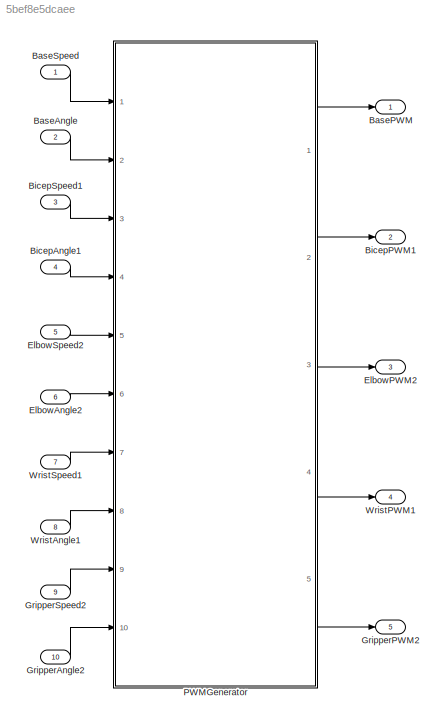
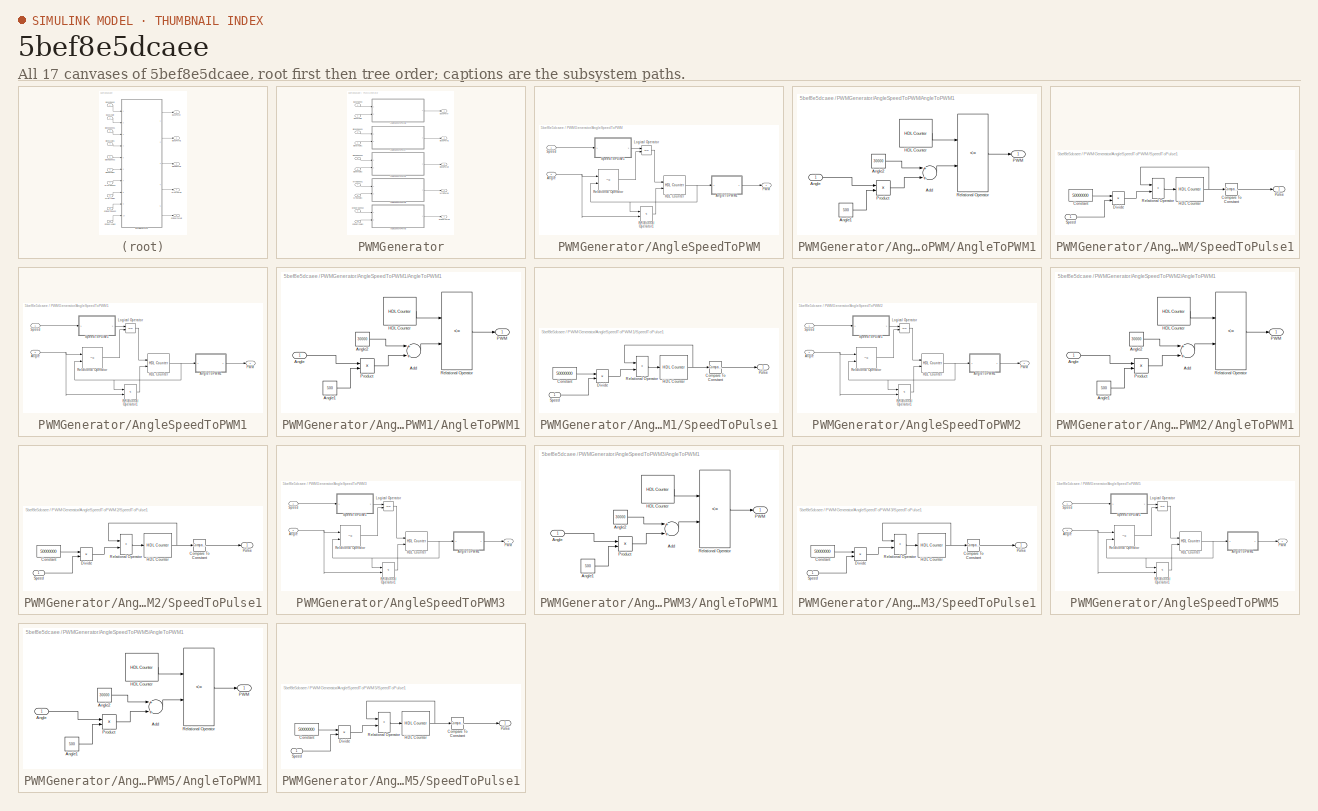
[diagram: thumbnail index - all 17 canvases of the model, root first then tree order]
MODEL slx_5bef8e5dcaee
KIND model
CONFIG AbsTol = auto
CONFIG EnableMultiTasking = off
CONFIG FixedStep = 1
CONFIG MaxStep = auto
CONFIG MinStep = auto
CONFIG RelTol = 1e-3
CONFIG SampleTimeConstraint = Unconstrained
CONFIG Solver = FixedStepDiscrete
CONFIG SolverName = FixedStepDiscrete
CONFIG StartTime = 0.0
CONFIG StopTime = 50000
BLOCK [Inport] BaseAngle
  IconDisplay = Port number
  OutDataTypeStr = uint8
  Port = 2
BLOCK [Outport] BasePWM
  IconDisplay = Port number
BLOCK [Inport] BaseSpeed
  IconDisplay = Port number
  OutDataTypeStr = uint8
BLOCK [Inport] BicepAngle1
  IconDisplay = Port number
  OutDataTypeStr = uint8
  Port = 4
BLOCK [Outport] BicepPWM1
  IconDisplay = Port number
  Port = 2
BLOCK [Inport] BicepSpeed1
  IconDisplay = Port number
  OutDataTypeStr = uint8
  Port = 3
BLOCK [Inport] ElbowAngle2
  IconDisplay = Port number
  OutDataTypeStr = uint8
  Port = 6
BLOCK [Outport] ElbowPWM2
  IconDisplay = Port number
  Port = 3
BLOCK [Inport] ElbowSpeed2
  IconDisplay = Port number
  OutDataTypeStr = uint8
  Port = 5
BLOCK [Inport] GripperAngle2
  IconDisplay = Port number
  OutDataTypeStr = uint8
  Port = 10
BLOCK [Outport] GripperPWM2
  IconDisplay = Port number
  Port = 5
BLOCK [Inport] GripperSpeed2
  IconDisplay = Port number
  OutDataTypeStr = uint8
  Port = 9
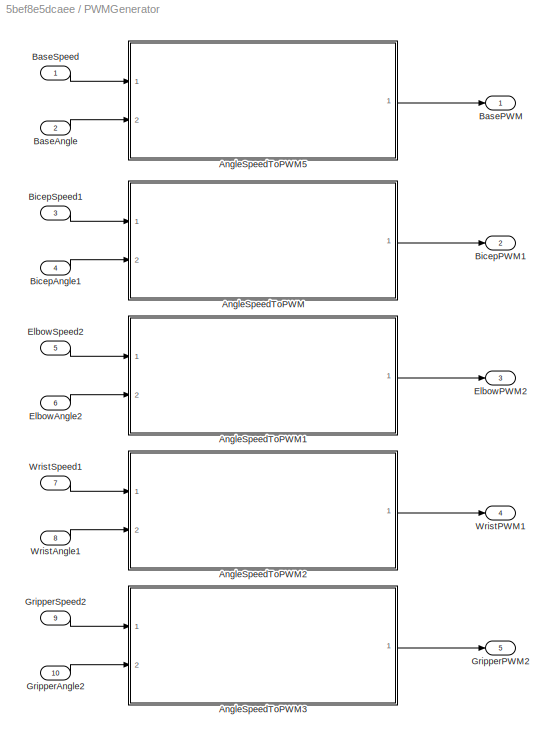
BLOCK [SubSystem] PWMGenerator
  Ports = [10, 5]
  RequestExecContextInheritance = off
  Variant = off
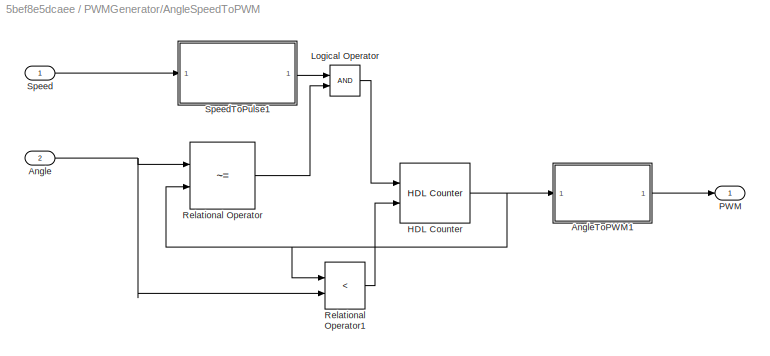
BLOCK [SubSystem] PWMGenerator/AngleSpeedToPWM
  Ports = [2, 1]
  RequestExecContextInheritance = off
  Variant = off
BLOCK [Inport] PWMGenerator/AngleSpeedToPWM/Angle
  IconDisplay = Port number
  Port = 2
BLOCK [SubSystem] PWMGenerator/AngleSpeedToPWM/AngleToPWM1
  Ports = [1, 1]
  RequestExecContextInheritance = off
  Variant = off
BLOCK [Sum] PWMGenerator/AngleSpeedToPWM/AngleToPWM1/Add
  InputSameDT = off
  OutDataTypeStr = Inherit: Inherit via internal rule
  Ports = [2, 1]
  SaturateOnIntegerOverflow = off
BLOCK [Inport] PWMGenerator/AngleSpeedToPWM/AngleToPWM1/Angle
  IconDisplay = Port number
BLOCK [Constant] PWMGenerator/AngleSpeedToPWM/AngleToPWM1/Angle1
  OutDataTypeStr = uint16
  SampleTime = 1
  Value = 500
BLOCK [Constant] PWMGenerator/AngleSpeedToPWM/AngleToPWM1/Angle2
  OutDataTypeStr = uint32
  SampleTime = 1
  Value = 30000
BLOCK [Reference] PWMGenerator/AngleSpeedToPWM/AngleToPWM1/HDL Counter  REF=hdlsllib/HDL Operations/HDL Counter
  Ports = [0, 1]
  SourceBlock = hdlsllib/HDL Operations/HDL Counter
  SourceProductBaseCode = HD
  SourceProductName = HDL Coder
  SourceType = HDL Counter
BLOCK [Outport] PWMGenerator/AngleSpeedToPWM/AngleToPWM1/PWM
  IconDisplay = Port number
BLOCK [Product] PWMGenerator/AngleSpeedToPWM/AngleToPWM1/Product
  InputSameDT = off
  OutDataTypeStr = Inherit: Inherit via internal rule
  Ports = [2, 1]
  RndMeth = Floor
  SaturateOnIntegerOverflow = off
BLOCK [RelationalOperator] PWMGenerator/AngleSpeedToPWM/AngleToPWM1/Relational Operator
  InputSameDT = off
  Operator = <=
  OutDataTypeStr = boolean
  Ports = [2, 1]
  RndMeth = Simplest
BLOCK [Reference] PWMGenerator/AngleSpeedToPWM/HDL Counter  REF=hdlsllib/HDL Operations/HDL Counter
  Ports = [2, 1]
  SourceBlock = hdlsllib/HDL Operations/HDL Counter
  SourceProductBaseCode = HD
  SourceProductName = HDL Coder
  SourceType = HDL Counter
BLOCK [Logic] PWMGenerator/AngleSpeedToPWM/Logical Operator
  AllPortsSameDT = off
  OutDataTypeStr = boolean
  Ports = [2, 1]
BLOCK [Outport] PWMGenerator/AngleSpeedToPWM/PWM
  IconDisplay = Port number
BLOCK [RelationalOperator] PWMGenerator/AngleSpeedToPWM/Relational Operator
  InputSameDT = off
  Operator = ~=
  OutDataTypeStr = boolean
  Ports = [2, 1]
  RndMeth = Simplest
BLOCK [RelationalOperator] PWMGenerator/AngleSpeedToPWM/Relational Operator1
  InputSameDT = off
  Operator = <
  OutDataTypeStr = boolean
  Ports = [2, 1]
  RndMeth = Simplest
BLOCK [Inport] PWMGenerator/AngleSpeedToPWM/Speed
  IconDisplay = Port number
BLOCK [SubSystem] PWMGenerator/AngleSpeedToPWM/SpeedToPulse1
  Ports = [1, 1]
  RequestExecContextInheritance = off
  Variant = off
BLOCK [Reference] PWMGenerator/AngleSpeedToPWM/SpeedToPulse1/Compare To Constant  REF=simulink/Logic and Bit
Operations/Compare
To Constant
  Ports = [1, 1]
  SourceBlock = simulink/Logic and Bit\nOperations/Compare\nTo Constant
  SourceProductBaseCode = SL
  SourceProductName = Simulink
  SourceType = Compare To Constant
BLOCK [Constant] PWMGenerator/AngleSpeedToPWM/SpeedToPulse1/Constant
  OutDataTypeStr = uint32
  SampleTime = 1
  Value = 50000000
BLOCK [Product] PWMGenerator/AngleSpeedToPWM/SpeedToPulse1/Divide
  InputSameDT = off
  Inputs = */
  OutDataTypeStr = Inherit: Inherit via internal rule
  Ports = [2, 1]
BLOCK [Reference] PWMGenerator/AngleSpeedToPWM/SpeedToPulse1/HDL Counter  REF=hdlsllib/HDL Operations/HDL Counter
  Ports = [1, 1]
  SourceBlock = hdlsllib/HDL Operations/HDL Counter
  SourceProductBaseCode = HD
  SourceProductName = HDL Coder
  SourceType = HDL Counter
BLOCK [Outport] PWMGenerator/AngleSpeedToPWM/SpeedToPulse1/Pulse
  IconDisplay = Port number
BLOCK [RelationalOperator] PWMGenerator/AngleSpeedToPWM/SpeedToPulse1/Relational Operator
  InputSameDT = off
  Operator = >
  OutDataTypeStr = boolean
  Ports = [2, 1]
BLOCK [Inport] PWMGenerator/AngleSpeedToPWM/SpeedToPulse1/Speed
  IconDisplay = Port number
  OutDataTypeStr = uint8
BLOCK [SubSystem] PWMGenerator/AngleSpeedToPWM1
  Ports = [2, 1]
  RequestExecContextInheritance = off
  Variant = off
BLOCK [Inport] PWMGenerator/AngleSpeedToPWM1/Angle
  IconDisplay = Port number
  Port = 2
BLOCK [SubSystem] PWMGenerator/AngleSpeedToPWM1/AngleToPWM1
  Ports = [1, 1]
  RequestExecContextInheritance = off
  Variant = off
BLOCK [Sum] PWMGenerator/AngleSpeedToPWM1/AngleToPWM1/Add
  InputSameDT = off
  OutDataTypeStr = Inherit: Inherit via internal rule
  Ports = [2, 1]
  SaturateOnIntegerOverflow = off
BLOCK [Inport] PWMGenerator/AngleSpeedToPWM1/AngleToPWM1/Angle
  IconDisplay = Port number
BLOCK [Constant] PWMGenerator/AngleSpeedToPWM1/AngleToPWM1/Angle1
  OutDataTypeStr = uint16
  SampleTime = 1
  Value = 500
BLOCK [Constant] PWMGenerator/AngleSpeedToPWM1/AngleToPWM1/Angle2
  OutDataTypeStr = uint32
  SampleTime = 1
  Value = 30000
BLOCK [Reference] PWMGenerator/AngleSpeedToPWM1/AngleToPWM1/HDL Counter  REF=hdlsllib/HDL Operations/HDL Counter
  Ports = [0, 1]
  SourceBlock = hdlsllib/HDL Operations/HDL Counter
  SourceProductBaseCode = HD
  SourceProductName = HDL Coder
  SourceType = HDL Counter
BLOCK [Outport] PWMGenerator/AngleSpeedToPWM1/AngleToPWM1/PWM
  IconDisplay = Port number
BLOCK [Product] PWMGenerator/AngleSpeedToPWM1/AngleToPWM1/Product
  InputSameDT = off
  OutDataTypeStr = Inherit: Inherit via internal rule
  Ports = [2, 1]
  RndMeth = Floor
  SaturateOnIntegerOverflow = off
BLOCK [RelationalOperator] PWMGenerator/AngleSpeedToPWM1/AngleToPWM1/Relational Operator
  InputSameDT = off
  Operator = <=
  OutDataTypeStr = boolean
  Ports = [2, 1]
  RndMeth = Simplest
BLOCK [Reference] PWMGenerator/AngleSpeedToPWM1/HDL Counter  REF=hdlsllib/HDL Operations/HDL Counter
  Ports = [2, 1]
  SourceBlock = hdlsllib/HDL Operations/HDL Counter
  SourceProductBaseCode = HD
  SourceProductName = HDL Coder
  SourceType = HDL Counter
BLOCK [Logic] PWMGenerator/AngleSpeedToPWM1/Logical Operator
  AllPortsSameDT = off
  OutDataTypeStr = boolean
  Ports = [2, 1]
BLOCK [Outport] PWMGenerator/AngleSpeedToPWM1/PWM
  IconDisplay = Port number
BLOCK [RelationalOperator] PWMGenerator/AngleSpeedToPWM1/Relational Operator
  InputSameDT = off
  Operator = ~=
  OutDataTypeStr = boolean
  Ports = [2, 1]
  RndMeth = Simplest
BLOCK [RelationalOperator] PWMGenerator/AngleSpeedToPWM1/Relational Operator1
  InputSameDT = off
  Operator = <
  OutDataTypeStr = boolean
  Ports = [2, 1]
  RndMeth = Simplest
BLOCK [Inport] PWMGenerator/AngleSpeedToPWM1/Speed
  IconDisplay = Port number
BLOCK [SubSystem] PWMGenerator/AngleSpeedToPWM1/SpeedToPulse1
  Ports = [1, 1]
  RequestExecContextInheritance = off
  Variant = off
BLOCK [Reference] PWMGenerator/AngleSpeedToPWM1/SpeedToPulse1/Compare To Constant  REF=simulink/Logic and Bit
Operations/Compare
To Constant
  Ports = [1, 1]
  SourceBlock = simulink/Logic and Bit\nOperations/Compare\nTo Constant
  SourceProductBaseCode = SL
  SourceProductName = Simulink
  SourceType = Compare To Constant
BLOCK [Constant] PWMGenerator/AngleSpeedToPWM1/SpeedToPulse1/Constant
  OutDataTypeStr = uint32
  SampleTime = 1
  Value = 50000000
BLOCK [Product] PWMGenerator/AngleSpeedToPWM1/SpeedToPulse1/Divide
  InputSameDT = off
  Inputs = */
  OutDataTypeStr = Inherit: Inherit via internal rule
  Ports = [2, 1]
BLOCK [Reference] PWMGenerator/AngleSpeedToPWM1/SpeedToPulse1/HDL Counter  REF=hdlsllib/HDL Operations/HDL Counter
  Ports = [1, 1]
  SourceBlock = hdlsllib/HDL Operations/HDL Counter
  SourceProductBaseCode = HD
  SourceProductName = HDL Coder
  SourceType = HDL Counter
BLOCK [Outport] PWMGenerator/AngleSpeedToPWM1/SpeedToPulse1/Pulse
  IconDisplay = Port number
BLOCK [RelationalOperator] PWMGenerator/AngleSpeedToPWM1/SpeedToPulse1/Relational Operator
  InputSameDT = off
  Operator = >
  OutDataTypeStr = boolean
  Ports = [2, 1]
BLOCK [Inport] PWMGenerator/AngleSpeedToPWM1/SpeedToPulse1/Speed
  IconDisplay = Port number
  OutDataTypeStr = uint8
BLOCK [SubSystem] PWMGenerator/AngleSpeedToPWM2
  Ports = [2, 1]
  RequestExecContextInheritance = off
  Variant = off
BLOCK [Inport] PWMGenerator/AngleSpeedToPWM2/Angle
  IconDisplay = Port number
  Port = 2
BLOCK [SubSystem] PWMGenerator/AngleSpeedToPWM2/AngleToPWM1
  Ports = [1, 1]
  RequestExecContextInheritance = off
  Variant = off
BLOCK [Sum] PWMGenerator/AngleSpeedToPWM2/AngleToPWM1/Add
  InputSameDT = off
  OutDataTypeStr = Inherit: Inherit via internal rule
  Ports = [2, 1]
  SaturateOnIntegerOverflow = off
BLOCK [Inport] PWMGenerator/AngleSpeedToPWM2/AngleToPWM1/Angle
  IconDisplay = Port number
BLOCK [Constant] PWMGenerator/AngleSpeedToPWM2/AngleToPWM1/Angle1
  OutDataTypeStr = uint16
  SampleTime = 1
  Value = 500
BLOCK [Constant] PWMGenerator/AngleSpeedToPWM2/AngleToPWM1/Angle2
  OutDataTypeStr = uint32
  SampleTime = 1
  Value = 30000
BLOCK [Reference] PWMGenerator/AngleSpeedToPWM2/AngleToPWM1/HDL Counter  REF=hdlsllib/HDL Operations/HDL Counter
  Ports = [0, 1]
  SourceBlock = hdlsllib/HDL Operations/HDL Counter
  SourceProductBaseCode = HD
  SourceProductName = HDL Coder
  SourceType = HDL Counter
BLOCK [Outport] PWMGenerator/AngleSpeedToPWM2/AngleToPWM1/PWM
  IconDisplay = Port number
BLOCK [Product] PWMGenerator/AngleSpeedToPWM2/AngleToPWM1/Product
  InputSameDT = off
  OutDataTypeStr = Inherit: Inherit via internal rule
  Ports = [2, 1]
  RndMeth = Floor
  SaturateOnIntegerOverflow = off
BLOCK [RelationalOperator] PWMGenerator/AngleSpeedToPWM2/AngleToPWM1/Relational Operator
  InputSameDT = off
  Operator = <=
  OutDataTypeStr = boolean
  Ports = [2, 1]
  RndMeth = Simplest
BLOCK [Reference] PWMGenerator/AngleSpeedToPWM2/HDL Counter  REF=hdlsllib/HDL Operations/HDL Counter
  Ports = [2, 1]
  SourceBlock = hdlsllib/HDL Operations/HDL Counter
  SourceProductBaseCode = HD
  SourceProductName = HDL Coder
  SourceType = HDL Counter
BLOCK [Logic] PWMGenerator/AngleSpeedToPWM2/Logical Operator
  AllPortsSameDT = off
  OutDataTypeStr = boolean
  Ports = [2, 1]
BLOCK [Outport] PWMGenerator/AngleSpeedToPWM2/PWM
  IconDisplay = Port number
BLOCK [RelationalOperator] PWMGenerator/AngleSpeedToPWM2/Relational Operator
  InputSameDT = off
  Operator = ~=
  OutDataTypeStr = boolean
  Ports = [2, 1]
  RndMeth = Simplest
BLOCK [RelationalOperator] PWMGenerator/AngleSpeedToPWM2/Relational Operator1
  InputSameDT = off
  Operator = <
  OutDataTypeStr = boolean
  Ports = [2, 1]
  RndMeth = Simplest
BLOCK [Inport] PWMGenerator/AngleSpeedToPWM2/Speed
  IconDisplay = Port number
BLOCK [SubSystem] PWMGenerator/AngleSpeedToPWM2/SpeedToPulse1
  Ports = [1, 1]
  RequestExecContextInheritance = off
  Variant = off
BLOCK [Reference] PWMGenerator/AngleSpeedToPWM2/SpeedToPulse1/Compare To Constant  REF=simulink/Logic and Bit
Operations/Compare
To Constant
  Ports = [1, 1]
  SourceBlock = simulink/Logic and Bit\nOperations/Compare\nTo Constant
  SourceProductBaseCode = SL
  SourceProductName = Simulink
  SourceType = Compare To Constant
BLOCK [Constant] PWMGenerator/AngleSpeedToPWM2/SpeedToPulse1/Constant
  OutDataTypeStr = uint32
  SampleTime = 1
  Value = 50000000
BLOCK [Product] PWMGenerator/AngleSpeedToPWM2/SpeedToPulse1/Divide
  InputSameDT = off
  Inputs = */
  OutDataTypeStr = Inherit: Inherit via internal rule
  Ports = [2, 1]
BLOCK [Reference] PWMGenerator/AngleSpeedToPWM2/SpeedToPulse1/HDL Counter  REF=hdlsllib/HDL Operations/HDL Counter
  Ports = [1, 1]
  SourceBlock = hdlsllib/HDL Operations/HDL Counter
  SourceProductBaseCode = HD
  SourceProductName = HDL Coder
  SourceType = HDL Counter
BLOCK [Outport] PWMGenerator/AngleSpeedToPWM2/SpeedToPulse1/Pulse
  IconDisplay = Port number
BLOCK [RelationalOperator] PWMGenerator/AngleSpeedToPWM2/SpeedToPulse1/Relational Operator
  InputSameDT = off
  Operator = >
  OutDataTypeStr = boolean
  Ports = [2, 1]
BLOCK [Inport] PWMGenerator/AngleSpeedToPWM2/SpeedToPulse1/Speed
  IconDisplay = Port number
  OutDataTypeStr = uint8
BLOCK [SubSystem] PWMGenerator/AngleSpeedToPWM3
  Ports = [2, 1]
  RequestExecContextInheritance = off
  Variant = off
BLOCK [Inport] PWMGenerator/AngleSpeedToPWM3/Angle
  IconDisplay = Port number
  Port = 2
BLOCK [SubSystem] PWMGenerator/AngleSpeedToPWM3/AngleToPWM1
  Ports = [1, 1]
  RequestExecContextInheritance = off
  Variant = off
BLOCK [Sum] PWMGenerator/AngleSpeedToPWM3/AngleToPWM1/Add
  InputSameDT = off
  OutDataTypeStr = Inherit: Inherit via internal rule
  Ports = [2, 1]
  SaturateOnIntegerOverflow = off
BLOCK [Inport] PWMGenerator/AngleSpeedToPWM3/AngleToPWM1/Angle
  IconDisplay = Port number
BLOCK [Constant] PWMGenerator/AngleSpeedToPWM3/AngleToPWM1/Angle1
  OutDataTypeStr = uint16
  SampleTime = 1
  Value = 500
BLOCK [Constant] PWMGenerator/AngleSpeedToPWM3/AngleToPWM1/Angle2
  OutDataTypeStr = uint32
  SampleTime = 1
  Value = 30000
BLOCK [Reference] PWMGenerator/AngleSpeedToPWM3/AngleToPWM1/HDL Counter  REF=hdlsllib/HDL Operations/HDL Counter
  Ports = [0, 1]
  SourceBlock = hdlsllib/HDL Operations/HDL Counter
  SourceProductBaseCode = HD
  SourceProductName = HDL Coder
  SourceType = HDL Counter
BLOCK [Outport] PWMGenerator/AngleSpeedToPWM3/AngleToPWM1/PWM
  IconDisplay = Port number
BLOCK [Product] PWMGenerator/AngleSpeedToPWM3/AngleToPWM1/Product
  InputSameDT = off
  OutDataTypeStr = Inherit: Inherit via internal rule
  Ports = [2, 1]
  RndMeth = Floor
  SaturateOnIntegerOverflow = off
BLOCK [RelationalOperator] PWMGenerator/AngleSpeedToPWM3/AngleToPWM1/Relational Operator
  InputSameDT = off
  Operator = <=
  OutDataTypeStr = boolean
  Ports = [2, 1]
  RndMeth = Simplest
BLOCK [Reference] PWMGenerator/AngleSpeedToPWM3/HDL Counter  REF=hdlsllib/HDL Operations/HDL Counter
  Ports = [2, 1]
  SourceBlock = hdlsllib/HDL Operations/HDL Counter
  SourceProductBaseCode = HD
  SourceProductName = HDL Coder
  SourceType = HDL Counter
BLOCK [Logic] PWMGenerator/AngleSpeedToPWM3/Logical Operator
  AllPortsSameDT = off
  OutDataTypeStr = boolean
  Ports = [2, 1]
BLOCK [Outport] PWMGenerator/AngleSpeedToPWM3/PWM
  IconDisplay = Port number
BLOCK [RelationalOperator] PWMGenerator/AngleSpeedToPWM3/Relational Operator
  InputSameDT = off
  Operator = ~=
  OutDataTypeStr = boolean
  Ports = [2, 1]
  RndMeth = Simplest
BLOCK [RelationalOperator] PWMGenerator/AngleSpeedToPWM3/Relational Operator1
  InputSameDT = off
  Operator = <
  OutDataTypeStr = boolean
  Ports = [2, 1]
  RndMeth = Simplest
BLOCK [Inport] PWMGenerator/AngleSpeedToPWM3/Speed
  IconDisplay = Port number
BLOCK [SubSystem] PWMGenerator/AngleSpeedToPWM3/SpeedToPulse1
  Ports = [1, 1]
  RequestExecContextInheritance = off
  Variant = off
BLOCK [Reference] PWMGenerator/AngleSpeedToPWM3/SpeedToPulse1/Compare To Constant  REF=simulink/Logic and Bit
Operations/Compare
To Constant
  Ports = [1, 1]
  SourceBlock = simulink/Logic and Bit\nOperations/Compare\nTo Constant
  SourceProductBaseCode = SL
  SourceProductName = Simulink
  SourceType = Compare To Constant
BLOCK [Constant] PWMGenerator/AngleSpeedToPWM3/SpeedToPulse1/Constant
  OutDataTypeStr = uint32
  SampleTime = 1
  Value = 50000000
BLOCK [Product] PWMGenerator/AngleSpeedToPWM3/SpeedToPulse1/Divide
  InputSameDT = off
  Inputs = */
  OutDataTypeStr = Inherit: Inherit via internal rule
  Ports = [2, 1]
BLOCK [Reference] PWMGenerator/AngleSpeedToPWM3/SpeedToPulse1/HDL Counter  REF=hdlsllib/HDL Operations/HDL Counter
  Ports = [1, 1]
  SourceBlock = hdlsllib/HDL Operations/HDL Counter
  SourceProductBaseCode = HD
  SourceProductName = HDL Coder
  SourceType = HDL Counter
BLOCK [Outport] PWMGenerator/AngleSpeedToPWM3/SpeedToPulse1/Pulse
  IconDisplay = Port number
BLOCK [RelationalOperator] PWMGenerator/AngleSpeedToPWM3/SpeedToPulse1/Relational Operator
  InputSameDT = off
  Operator = >
  OutDataTypeStr = boolean
  Ports = [2, 1]
BLOCK [Inport] PWMGenerator/AngleSpeedToPWM3/SpeedToPulse1/Speed
  IconDisplay = Port number
  OutDataTypeStr = uint8
BLOCK [SubSystem] PWMGenerator/AngleSpeedToPWM5
  Ports = [2, 1]
  RequestExecContextInheritance = off
  Variant = off
BLOCK [Inport] PWMGenerator/AngleSpeedToPWM5/Angle
  IconDisplay = Port number
  Port = 2
BLOCK [SubSystem] PWMGenerator/AngleSpeedToPWM5/AngleToPWM1
  Ports = [1, 1]
  RequestExecContextInheritance = off
  Variant = off
BLOCK [Sum] PWMGenerator/AngleSpeedToPWM5/AngleToPWM1/Add
  InputSameDT = off
  OutDataTypeStr = Inherit: Inherit via internal rule
  Ports = [2, 1]
  SaturateOnIntegerOverflow = off
BLOCK [Inport] PWMGenerator/AngleSpeedToPWM5/AngleToPWM1/Angle
  IconDisplay = Port number
BLOCK [Constant] PWMGenerator/AngleSpeedToPWM5/AngleToPWM1/Angle1
  OutDataTypeStr = uint16
  SampleTime = 1
  Value = 500
BLOCK [Constant] PWMGenerator/AngleSpeedToPWM5/AngleToPWM1/Angle2
  OutDataTypeStr = uint32
  SampleTime = 1
  Value = 30000
BLOCK [Reference] PWMGenerator/AngleSpeedToPWM5/AngleToPWM1/HDL Counter  REF=hdlsllib/HDL Operations/HDL Counter
  Ports = [0, 1]
  SourceBlock = hdlsllib/HDL Operations/HDL Counter
  SourceProductBaseCode = HD
  SourceProductName = HDL Coder
  SourceType = HDL Counter
BLOCK [Outport] PWMGenerator/AngleSpeedToPWM5/AngleToPWM1/PWM
  IconDisplay = Port number
BLOCK [Product] PWMGenerator/AngleSpeedToPWM5/AngleToPWM1/Product
  InputSameDT = off
  OutDataTypeStr = Inherit: Inherit via internal rule
  Ports = [2, 1]
  RndMeth = Floor
  SaturateOnIntegerOverflow = off
BLOCK [RelationalOperator] PWMGenerator/AngleSpeedToPWM5/AngleToPWM1/Relational Operator
  InputSameDT = off
  Operator = <=
  OutDataTypeStr = boolean
  Ports = [2, 1]
  RndMeth = Simplest
BLOCK [Reference] PWMGenerator/AngleSpeedToPWM5/HDL Counter  REF=hdlsllib/HDL Operations/HDL Counter
  Ports = [2, 1]
  SourceBlock = hdlsllib/HDL Operations/HDL Counter
  SourceProductBaseCode = HD
  SourceProductName = HDL Coder
  SourceType = HDL Counter
BLOCK [Logic] PWMGenerator/AngleSpeedToPWM5/Logical Operator
  AllPortsSameDT = off
  OutDataTypeStr = boolean
  Ports = [2, 1]
BLOCK [Outport] PWMGenerator/AngleSpeedToPWM5/PWM
  IconDisplay = Port number
BLOCK [RelationalOperator] PWMGenerator/AngleSpeedToPWM5/Relational Operator
  InputSameDT = off
  Operator = ~=
  OutDataTypeStr = boolean
  Ports = [2, 1]
  RndMeth = Simplest
BLOCK [RelationalOperator] PWMGenerator/AngleSpeedToPWM5/Relational Operator1
  InputSameDT = off
  Operator = <
  OutDataTypeStr = boolean
  Ports = [2, 1]
  RndMeth = Simplest
BLOCK [Inport] PWMGenerator/AngleSpeedToPWM5/Speed
  IconDisplay = Port number
BLOCK [SubSystem] PWMGenerator/AngleSpeedToPWM5/SpeedToPulse1
  Ports = [1, 1]
  RequestExecContextInheritance = off
  Variant = off
BLOCK [Reference] PWMGenerator/AngleSpeedToPWM5/SpeedToPulse1/Compare To Constant  REF=simulink/Logic and Bit
Operations/Compare
To Constant
  Ports = [1, 1]
  SourceBlock = simulink/Logic and Bit\nOperations/Compare\nTo Constant
  SourceProductBaseCode = SL
  SourceProductName = Simulink
  SourceType = Compare To Constant
BLOCK [Constant] PWMGenerator/AngleSpeedToPWM5/SpeedToPulse1/Constant
  OutDataTypeStr = uint32
  SampleTime = 1
  Value = 50000000
BLOCK [Product] PWMGenerator/AngleSpeedToPWM5/SpeedToPulse1/Divide
  InputSameDT = off
  Inputs = */
  OutDataTypeStr = Inherit: Inherit via internal rule
  Ports = [2, 1]
BLOCK [Reference] PWMGenerator/AngleSpeedToPWM5/SpeedToPulse1/HDL Counter  REF=hdlsllib/HDL Operations/HDL Counter
  Ports = [1, 1]
  SourceBlock = hdlsllib/HDL Operations/HDL Counter
  SourceProductBaseCode = HD
  SourceProductName = HDL Coder
  SourceType = HDL Counter
BLOCK [Outport] PWMGenerator/AngleSpeedToPWM5/SpeedToPulse1/Pulse
  IconDisplay = Port number
BLOCK [RelationalOperator] PWMGenerator/AngleSpeedToPWM5/SpeedToPulse1/Relational Operator
  InputSameDT = off
  Operator = >
  OutDataTypeStr = boolean
  Ports = [2, 1]
BLOCK [Inport] PWMGenerator/AngleSpeedToPWM5/SpeedToPulse1/Speed
  IconDisplay = Port number
  OutDataTypeStr = uint8
BLOCK [Inport] PWMGenerator/BaseAngle
  IconDisplay = Port number
  Port = 2
BLOCK [Outport] PWMGenerator/BasePWM
  IconDisplay = Port number
BLOCK [Inport] PWMGenerator/BaseSpeed
  IconDisplay = Port number
BLOCK [Inport] PWMGenerator/BicepAngle1
  IconDisplay = Port number
  Port = 4
BLOCK [Outport] PWMGenerator/BicepPWM1
  IconDisplay = Port number
  Port = 2
BLOCK [Inport] PWMGenerator/BicepSpeed1
  IconDisplay = Port number
  Port = 3
BLOCK [Inport] PWMGenerator/ElbowAngle2
  IconDisplay = Port number
  Port = 6
BLOCK [Outport] PWMGenerator/ElbowPWM2
  IconDisplay = Port number
  Port = 3
BLOCK [Inport] PWMGenerator/ElbowSpeed2
  IconDisplay = Port number
  Port = 5
BLOCK [Inport] PWMGenerator/GripperAngle2
  IconDisplay = Port number
  Port = 10
BLOCK [Outport] PWMGenerator/GripperPWM2
  IconDisplay = Port number
  Port = 5
BLOCK [Inport] PWMGenerator/GripperSpeed2
  IconDisplay = Port number
  Port = 9
BLOCK [Inport] PWMGenerator/WristAngle1
  IconDisplay = Port number
  Port = 8
BLOCK [Outport] PWMGenerator/WristPWM1
  IconDisplay = Port number
  Port = 4
BLOCK [Inport] PWMGenerator/WristSpeed1
  IconDisplay = Port number
  Port = 7
BLOCK [Inport] WristAngle1
  IconDisplay = Port number
  OutDataTypeStr = uint8
  Port = 8
BLOCK [Outport] WristPWM1
  IconDisplay = Port number
  Port = 4
BLOCK [Inport] WristSpeed1
  IconDisplay = Port number
  OutDataTypeStr = uint8
  Port = 7
LINE BaseAngle:1 -> PWMGenerator:2
LINE BaseSpeed:1 -> PWMGenerator:1
LINE BicepAngle1:1 -> PWMGenerator:4
LINE BicepSpeed1:1 -> PWMGenerator:3
LINE ElbowAngle2:1 -> PWMGenerator:6
LINE ElbowSpeed2:1 -> PWMGenerator:5
LINE GripperAngle2:1 -> PWMGenerator:10
LINE GripperSpeed2:1 -> PWMGenerator:9
NET PWMGenerator/AngleSpeedToPWM/Angle:1 -> PWMGenerator/AngleSpeedToPWM/Relational Operator1:2, PWMGenerator/AngleSpeedToPWM/Relational Operator:1
LINE PWMGenerator/AngleSpeedToPWM/AngleToPWM1/Add:1 -> PWMGenerator/AngleSpeedToPWM/AngleToPWM1/Relational Operator:2
LINE PWMGenerator/AngleSpeedToPWM/AngleToPWM1/Angle1:1 -> PWMGenerator/AngleSpeedToPWM/AngleToPWM1/Product:2
LINE PWMGenerator/AngleSpeedToPWM/AngleToPWM1/Angle2:1 -> PWMGenerator/AngleSpeedToPWM/AngleToPWM1/Add:1
LINE PWMGenerator/AngleSpeedToPWM/AngleToPWM1/Angle:1 -> PWMGenerator/AngleSpeedToPWM/AngleToPWM1/Product:1
LINE PWMGenerator/AngleSpeedToPWM/AngleToPWM1/HDL Counter:1 -> PWMGenerator/AngleSpeedToPWM/AngleToPWM1/Relational Operator:1
LINE PWMGenerator/AngleSpeedToPWM/AngleToPWM1/Product:1 -> PWMGenerator/AngleSpeedToPWM/AngleToPWM1/Add:2
LINE PWMGenerator/AngleSpeedToPWM/AngleToPWM1/Relational Operator:1 -> PWMGenerator/AngleSpeedToPWM/AngleToPWM1/PWM:1
LINE PWMGenerator/AngleSpeedToPWM/AngleToPWM1:1 -> PWMGenerator/AngleSpeedToPWM/PWM:1
NET PWMGenerator/AngleSpeedToPWM/HDL Counter:1 -> PWMGenerator/AngleSpeedToPWM/AngleToPWM1:1, PWMGenerator/AngleSpeedToPWM/Relational Operator1:1, PWMGenerator/AngleSpeedToPWM/Relational Operator:2
LINE PWMGenerator/AngleSpeedToPWM/Logical Operator:1 -> PWMGenerator/AngleSpeedToPWM/HDL Counter:1
LINE PWMGenerator/AngleSpeedToPWM/Relational Operator1:1 -> PWMGenerator/AngleSpeedToPWM/HDL Counter:2
LINE PWMGenerator/AngleSpeedToPWM/Relational Operator:1 -> PWMGenerator/AngleSpeedToPWM/Logical Operator:2
LINE PWMGenerator/AngleSpeedToPWM/Speed:1 -> PWMGenerator/AngleSpeedToPWM/SpeedToPulse1:1
LINE PWMGenerator/AngleSpeedToPWM/SpeedToPulse1/Compare To Constant:1 -> PWMGenerator/AngleSpeedToPWM/SpeedToPulse1/Pulse:1
LINE PWMGenerator/AngleSpeedToPWM/SpeedToPulse1/Constant:1 -> PWMGenerator/AngleSpeedToPWM/SpeedToPulse1/Divide:1
LINE PWMGenerator/AngleSpeedToPWM/SpeedToPulse1/Divide:1 -> PWMGenerator/AngleSpeedToPWM/SpeedToPulse1/Relational Operator:2
NET PWMGenerator/AngleSpeedToPWM/SpeedToPulse1/HDL Counter:1 -> PWMGenerator/AngleSpeedToPWM/SpeedToPulse1/Compare To Constant:1, PWMGenerator/AngleSpeedToPWM/SpeedToPulse1/Relational Operator:1
LINE PWMGenerator/AngleSpeedToPWM/SpeedToPulse1/Relational Operator:1 -> PWMGenerator/AngleSpeedToPWM/SpeedToPulse1/HDL Counter:1
LINE PWMGenerator/AngleSpeedToPWM/SpeedToPulse1/Speed:1 -> PWMGenerator/AngleSpeedToPWM/SpeedToPulse1/Divide:2
LINE PWMGenerator/AngleSpeedToPWM/SpeedToPulse1:1 -> PWMGenerator/AngleSpeedToPWM/Logical Operator:1
NET PWMGenerator/AngleSpeedToPWM1/Angle:1 -> PWMGenerator/AngleSpeedToPWM1/Relational Operator1:2, PWMGenerator/AngleSpeedToPWM1/Relational Operator:1
LINE PWMGenerator/AngleSpeedToPWM1/AngleToPWM1/Add:1 -> PWMGenerator/AngleSpeedToPWM1/AngleToPWM1/Relational Operator:2
LINE PWMGenerator/AngleSpeedToPWM1/AngleToPWM1/Angle1:1 -> PWMGenerator/AngleSpeedToPWM1/AngleToPWM1/Product:2
LINE PWMGenerator/AngleSpeedToPWM1/AngleToPWM1/Angle2:1 -> PWMGenerator/AngleSpeedToPWM1/AngleToPWM1/Add:1
LINE PWMGenerator/AngleSpeedToPWM1/AngleToPWM1/Angle:1 -> PWMGenerator/AngleSpeedToPWM1/AngleToPWM1/Product:1
LINE PWMGenerator/AngleSpeedToPWM1/AngleToPWM1/HDL Counter:1 -> PWMGenerator/AngleSpeedToPWM1/AngleToPWM1/Relational Operator:1
LINE PWMGenerator/AngleSpeedToPWM1/AngleToPWM1/Product:1 -> PWMGenerator/AngleSpeedToPWM1/AngleToPWM1/Add:2
LINE PWMGenerator/AngleSpeedToPWM1/AngleToPWM1/Relational Operator:1 -> PWMGenerator/AngleSpeedToPWM1/AngleToPWM1/PWM:1
LINE PWMGenerator/AngleSpeedToPWM1/AngleToPWM1:1 -> PWMGenerator/AngleSpeedToPWM1/PWM:1
NET PWMGenerator/AngleSpeedToPWM1/HDL Counter:1 -> PWMGenerator/AngleSpeedToPWM1/AngleToPWM1:1, PWMGenerator/AngleSpeedToPWM1/Relational Operator1:1, PWMGenerator/AngleSpeedToPWM1/Relational Operator:2
LINE PWMGenerator/AngleSpeedToPWM1/Logical Operator:1 -> PWMGenerator/AngleSpeedToPWM1/HDL Counter:1
LINE PWMGenerator/AngleSpeedToPWM1/Relational Operator1:1 -> PWMGenerator/AngleSpeedToPWM1/HDL Counter:2
LINE PWMGenerator/AngleSpeedToPWM1/Relational Operator:1 -> PWMGenerator/AngleSpeedToPWM1/Logical Operator:2
LINE PWMGenerator/AngleSpeedToPWM1/Speed:1 -> PWMGenerator/AngleSpeedToPWM1/SpeedToPulse1:1
LINE PWMGenerator/AngleSpeedToPWM1/SpeedToPulse1/Compare To Constant:1 -> PWMGenerator/AngleSpeedToPWM1/SpeedToPulse1/Pulse:1
LINE PWMGenerator/AngleSpeedToPWM1/SpeedToPulse1/Constant:1 -> PWMGenerator/AngleSpeedToPWM1/SpeedToPulse1/Divide:1
LINE PWMGenerator/AngleSpeedToPWM1/SpeedToPulse1/Divide:1 -> PWMGenerator/AngleSpeedToPWM1/SpeedToPulse1/Relational Operator:2
NET PWMGenerator/AngleSpeedToPWM1/SpeedToPulse1/HDL Counter:1 -> PWMGenerator/AngleSpeedToPWM1/SpeedToPulse1/Compare To Constant:1, PWMGenerator/AngleSpeedToPWM1/SpeedToPulse1/Relational Operator:1
LINE PWMGenerator/AngleSpeedToPWM1/SpeedToPulse1/Relational Operator:1 -> PWMGenerator/AngleSpeedToPWM1/SpeedToPulse1/HDL Counter:1
LINE PWMGenerator/AngleSpeedToPWM1/SpeedToPulse1/Speed:1 -> PWMGenerator/AngleSpeedToPWM1/SpeedToPulse1/Divide:2
LINE PWMGenerator/AngleSpeedToPWM1/SpeedToPulse1:1 -> PWMGenerator/AngleSpeedToPWM1/Logical Operator:1
LINE PWMGenerator/AngleSpeedToPWM1:1 -> PWMGenerator/ElbowPWM2:1
NET PWMGenerator/AngleSpeedToPWM2/Angle:1 -> PWMGenerator/AngleSpeedToPWM2/Relational Operator1:2, PWMGenerator/AngleSpeedToPWM2/Relational Operator:1
LINE PWMGenerator/AngleSpeedToPWM2/AngleToPWM1/Add:1 -> PWMGenerator/AngleSpeedToPWM2/AngleToPWM1/Relational Operator:2
LINE PWMGenerator/AngleSpeedToPWM2/AngleToPWM1/Angle1:1 -> PWMGenerator/AngleSpeedToPWM2/AngleToPWM1/Product:2
LINE PWMGenerator/AngleSpeedToPWM2/AngleToPWM1/Angle2:1 -> PWMGenerator/AngleSpeedToPWM2/AngleToPWM1/Add:1
LINE PWMGenerator/AngleSpeedToPWM2/AngleToPWM1/Angle:1 -> PWMGenerator/AngleSpeedToPWM2/AngleToPWM1/Product:1
LINE PWMGenerator/AngleSpeedToPWM2/AngleToPWM1/HDL Counter:1 -> PWMGenerator/AngleSpeedToPWM2/AngleToPWM1/Relational Operator:1
LINE PWMGenerator/AngleSpeedToPWM2/AngleToPWM1/Product:1 -> PWMGenerator/AngleSpeedToPWM2/AngleToPWM1/Add:2
LINE PWMGenerator/AngleSpeedToPWM2/AngleToPWM1/Relational Operator:1 -> PWMGenerator/AngleSpeedToPWM2/AngleToPWM1/PWM:1
LINE PWMGenerator/AngleSpeedToPWM2/AngleToPWM1:1 -> PWMGenerator/AngleSpeedToPWM2/PWM:1
NET PWMGenerator/AngleSpeedToPWM2/HDL Counter:1 -> PWMGenerator/AngleSpeedToPWM2/AngleToPWM1:1, PWMGenerator/AngleSpeedToPWM2/Relational Operator1:1, PWMGenerator/AngleSpeedToPWM2/Relational Operator:2
LINE PWMGenerator/AngleSpeedToPWM2/Logical Operator:1 -> PWMGenerator/AngleSpeedToPWM2/HDL Counter:1
LINE PWMGenerator/AngleSpeedToPWM2/Relational Operator1:1 -> PWMGenerator/AngleSpeedToPWM2/HDL Counter:2
LINE PWMGenerator/AngleSpeedToPWM2/Relational Operator:1 -> PWMGenerator/AngleSpeedToPWM2/Logical Operator:2
LINE PWMGenerator/AngleSpeedToPWM2/Speed:1 -> PWMGenerator/AngleSpeedToPWM2/SpeedToPulse1:1
LINE PWMGenerator/AngleSpeedToPWM2/SpeedToPulse1/Compare To Constant:1 -> PWMGenerator/AngleSpeedToPWM2/SpeedToPulse1/Pulse:1
LINE PWMGenerator/AngleSpeedToPWM2/SpeedToPulse1/Constant:1 -> PWMGenerator/AngleSpeedToPWM2/SpeedToPulse1/Divide:1
LINE PWMGenerator/AngleSpeedToPWM2/SpeedToPulse1/Divide:1 -> PWMGenerator/AngleSpeedToPWM2/SpeedToPulse1/Relational Operator:2
NET PWMGenerator/AngleSpeedToPWM2/SpeedToPulse1/HDL Counter:1 -> PWMGenerator/AngleSpeedToPWM2/SpeedToPulse1/Compare To Constant:1, PWMGenerator/AngleSpeedToPWM2/SpeedToPulse1/Relational Operator:1
LINE PWMGenerator/AngleSpeedToPWM2/SpeedToPulse1/Relational Operator:1 -> PWMGenerator/AngleSpeedToPWM2/SpeedToPulse1/HDL Counter:1
LINE PWMGenerator/AngleSpeedToPWM2/SpeedToPulse1/Speed:1 -> PWMGenerator/AngleSpeedToPWM2/SpeedToPulse1/Divide:2
LINE PWMGenerator/AngleSpeedToPWM2/SpeedToPulse1:1 -> PWMGenerator/AngleSpeedToPWM2/Logical Operator:1
LINE PWMGenerator/AngleSpeedToPWM2:1 -> PWMGenerator/WristPWM1:1
NET PWMGenerator/AngleSpeedToPWM3/Angle:1 -> PWMGenerator/AngleSpeedToPWM3/Relational Operator1:2, PWMGenerator/AngleSpeedToPWM3/Relational Operator:1
LINE PWMGenerator/AngleSpeedToPWM3/AngleToPWM1/Add:1 -> PWMGenerator/AngleSpeedToPWM3/AngleToPWM1/Relational Operator:2
LINE PWMGenerator/AngleSpeedToPWM3/AngleToPWM1/Angle1:1 -> PWMGenerator/AngleSpeedToPWM3/AngleToPWM1/Product:2
LINE PWMGenerator/AngleSpeedToPWM3/AngleToPWM1/Angle2:1 -> PWMGenerator/AngleSpeedToPWM3/AngleToPWM1/Add:1
LINE PWMGenerator/AngleSpeedToPWM3/AngleToPWM1/Angle:1 -> PWMGenerator/AngleSpeedToPWM3/AngleToPWM1/Product:1
LINE PWMGenerator/AngleSpeedToPWM3/AngleToPWM1/HDL Counter:1 -> PWMGenerator/AngleSpeedToPWM3/AngleToPWM1/Relational Operator:1
LINE PWMGenerator/AngleSpeedToPWM3/AngleToPWM1/Product:1 -> PWMGenerator/AngleSpeedToPWM3/AngleToPWM1/Add:2
LINE PWMGenerator/AngleSpeedToPWM3/AngleToPWM1/Relational Operator:1 -> PWMGenerator/AngleSpeedToPWM3/AngleToPWM1/PWM:1
LINE PWMGenerator/AngleSpeedToPWM3/AngleToPWM1:1 -> PWMGenerator/AngleSpeedToPWM3/PWM:1
NET PWMGenerator/AngleSpeedToPWM3/HDL Counter:1 -> PWMGenerator/AngleSpeedToPWM3/AngleToPWM1:1, PWMGenerator/AngleSpeedToPWM3/Relational Operator1:1, PWMGenerator/AngleSpeedToPWM3/Relational Operator:2
LINE PWMGenerator/AngleSpeedToPWM3/Logical Operator:1 -> PWMGenerator/AngleSpeedToPWM3/HDL Counter:1
LINE PWMGenerator/AngleSpeedToPWM3/Relational Operator1:1 -> PWMGenerator/AngleSpeedToPWM3/HDL Counter:2
LINE PWMGenerator/AngleSpeedToPWM3/Relational Operator:1 -> PWMGenerator/AngleSpeedToPWM3/Logical Operator:2
LINE PWMGenerator/AngleSpeedToPWM3/Speed:1 -> PWMGenerator/AngleSpeedToPWM3/SpeedToPulse1:1
LINE PWMGenerator/AngleSpeedToPWM3/SpeedToPulse1/Compare To Constant:1 -> PWMGenerator/AngleSpeedToPWM3/SpeedToPulse1/Pulse:1
LINE PWMGenerator/AngleSpeedToPWM3/SpeedToPulse1/Constant:1 -> PWMGenerator/AngleSpeedToPWM3/SpeedToPulse1/Divide:1
LINE PWMGenerator/AngleSpeedToPWM3/SpeedToPulse1/Divide:1 -> PWMGenerator/AngleSpeedToPWM3/SpeedToPulse1/Relational Operator:2
NET PWMGenerator/AngleSpeedToPWM3/SpeedToPulse1/HDL Counter:1 -> PWMGenerator/AngleSpeedToPWM3/SpeedToPulse1/Compare To Constant:1, PWMGenerator/AngleSpeedToPWM3/SpeedToPulse1/Relational Operator:1
LINE PWMGenerator/AngleSpeedToPWM3/SpeedToPulse1/Relational Operator:1 -> PWMGenerator/AngleSpeedToPWM3/SpeedToPulse1/HDL Counter:1
LINE PWMGenerator/AngleSpeedToPWM3/SpeedToPulse1/Speed:1 -> PWMGenerator/AngleSpeedToPWM3/SpeedToPulse1/Divide:2
LINE PWMGenerator/AngleSpeedToPWM3/SpeedToPulse1:1 -> PWMGenerator/AngleSpeedToPWM3/Logical Operator:1
LINE PWMGenerator/AngleSpeedToPWM3:1 -> PWMGenerator/GripperPWM2:1
NET PWMGenerator/AngleSpeedToPWM5/Angle:1 -> PWMGenerator/AngleSpeedToPWM5/Relational Operator1:2, PWMGenerator/AngleSpeedToPWM5/Relational Operator:1
LINE PWMGenerator/AngleSpeedToPWM5/AngleToPWM1/Add:1 -> PWMGenerator/AngleSpeedToPWM5/AngleToPWM1/Relational Operator:2
LINE PWMGenerator/AngleSpeedToPWM5/AngleToPWM1/Angle1:1 -> PWMGenerator/AngleSpeedToPWM5/AngleToPWM1/Product:2
LINE PWMGenerator/AngleSpeedToPWM5/AngleToPWM1/Angle2:1 -> PWMGenerator/AngleSpeedToPWM5/AngleToPWM1/Add:1
LINE PWMGenerator/AngleSpeedToPWM5/AngleToPWM1/Angle:1 -> PWMGenerator/AngleSpeedToPWM5/AngleToPWM1/Product:1
LINE PWMGenerator/AngleSpeedToPWM5/AngleToPWM1/HDL Counter:1 -> PWMGenerator/AngleSpeedToPWM5/AngleToPWM1/Relational Operator:1
LINE PWMGenerator/AngleSpeedToPWM5/AngleToPWM1/Product:1 -> PWMGenerator/AngleSpeedToPWM5/AngleToPWM1/Add:2
LINE PWMGenerator/AngleSpeedToPWM5/AngleToPWM1/Relational Operator:1 -> PWMGenerator/AngleSpeedToPWM5/AngleToPWM1/PWM:1
LINE PWMGenerator/AngleSpeedToPWM5/AngleToPWM1:1 -> PWMGenerator/AngleSpeedToPWM5/PWM:1
NET PWMGenerator/AngleSpeedToPWM5/HDL Counter:1 -> PWMGenerator/AngleSpeedToPWM5/AngleToPWM1:1, PWMGenerator/AngleSpeedToPWM5/Relational Operator1:1, PWMGenerator/AngleSpeedToPWM5/Relational Operator:2
LINE PWMGenerator/AngleSpeedToPWM5/Logical Operator:1 -> PWMGenerator/AngleSpeedToPWM5/HDL Counter:1
LINE PWMGenerator/AngleSpeedToPWM5/Relational Operator1:1 -> PWMGenerator/AngleSpeedToPWM5/HDL Counter:2
LINE PWMGenerator/AngleSpeedToPWM5/Relational Operator:1 -> PWMGenerator/AngleSpeedToPWM5/Logical Operator:2
LINE PWMGenerator/AngleSpeedToPWM5/Speed:1 -> PWMGenerator/AngleSpeedToPWM5/SpeedToPulse1:1
LINE PWMGenerator/AngleSpeedToPWM5/SpeedToPulse1/Compare To Constant:1 -> PWMGenerator/AngleSpeedToPWM5/SpeedToPulse1/Pulse:1
LINE PWMGenerator/AngleSpeedToPWM5/SpeedToPulse1/Constant:1 -> PWMGenerator/AngleSpeedToPWM5/SpeedToPulse1/Divide:1
LINE PWMGenerator/AngleSpeedToPWM5/SpeedToPulse1/Divide:1 -> PWMGenerator/AngleSpeedToPWM5/SpeedToPulse1/Relational Operator:2
NET PWMGenerator/AngleSpeedToPWM5/SpeedToPulse1/HDL Counter:1 -> PWMGenerator/AngleSpeedToPWM5/SpeedToPulse1/Compare To Constant:1, PWMGenerator/AngleSpeedToPWM5/SpeedToPulse1/Relational Operator:1
LINE PWMGenerator/AngleSpeedToPWM5/SpeedToPulse1/Relational Operator:1 -> PWMGenerator/AngleSpeedToPWM5/SpeedToPulse1/HDL Counter:1
LINE PWMGenerator/AngleSpeedToPWM5/SpeedToPulse1/Speed:1 -> PWMGenerator/AngleSpeedToPWM5/SpeedToPulse1/Divide:2
LINE PWMGenerator/AngleSpeedToPWM5/SpeedToPulse1:1 -> PWMGenerator/AngleSpeedToPWM5/Logical Operator:1
LINE PWMGenerator/AngleSpeedToPWM5:1 -> PWMGenerator/BasePWM:1
LINE PWMGenerator/AngleSpeedToPWM:1 -> PWMGenerator/BicepPWM1:1
LINE PWMGenerator/BaseAngle:1 -> PWMGenerator/AngleSpeedToPWM5:2
LINE PWMGenerator/BaseSpeed:1 -> PWMGenerator/AngleSpeedToPWM5:1
LINE PWMGenerator/BicepAngle1:1 -> PWMGenerator/AngleSpeedToPWM:2
LINE PWMGenerator/BicepSpeed1:1 -> PWMGenerator/AngleSpeedToPWM:1
LINE PWMGenerator/ElbowAngle2:1 -> PWMGenerator/AngleSpeedToPWM1:2
LINE PWMGenerator/ElbowSpeed2:1 -> PWMGenerator/AngleSpeedToPWM1:1
LINE PWMGenerator/GripperAngle2:1 -> PWMGenerator/AngleSpeedToPWM3:2
LINE PWMGenerator/GripperSpeed2:1 -> PWMGenerator/AngleSpeedToPWM3:1
LINE PWMGenerator/WristAngle1:1 -> PWMGenerator/AngleSpeedToPWM2:2
LINE PWMGenerator/WristSpeed1:1 -> PWMGenerator/AngleSpeedToPWM2:1
LINE PWMGenerator:1 -> BasePWM:1
LINE PWMGenerator:2 -> BicepPWM1:1
LINE PWMGenerator:3 -> ElbowPWM2:1
LINE PWMGenerator:4 -> WristPWM1:1
LINE PWMGenerator:5 -> GripperPWM2:1
LINE WristAngle1:1 -> PWMGenerator:8
LINE WristSpeed1:1 -> PWMGenerator:7
note: NET lines group one-source signal fan-out (src -> all destinations, sorted); 1:1 wires keep LINE
